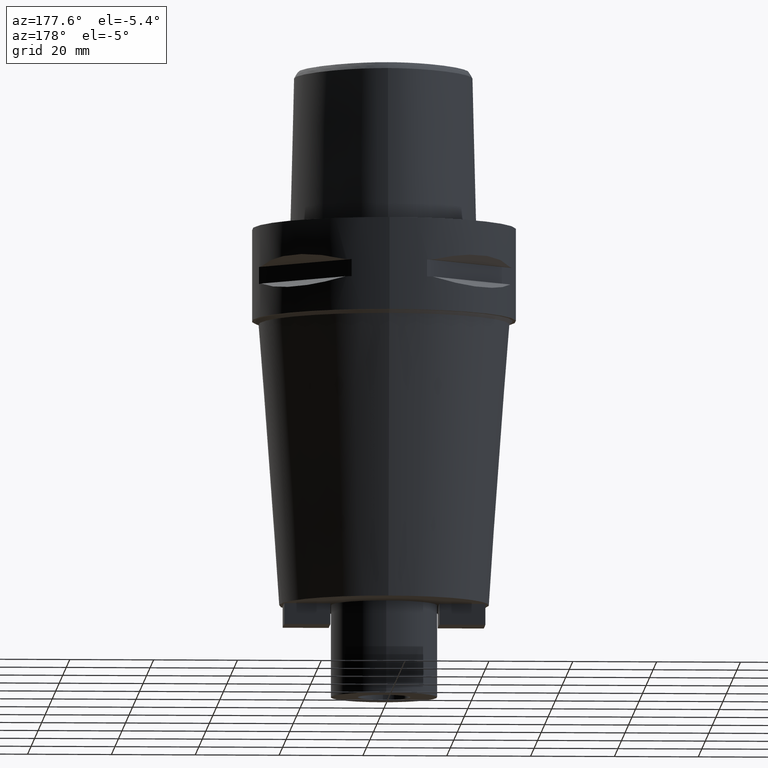
[diagram: clean part render]
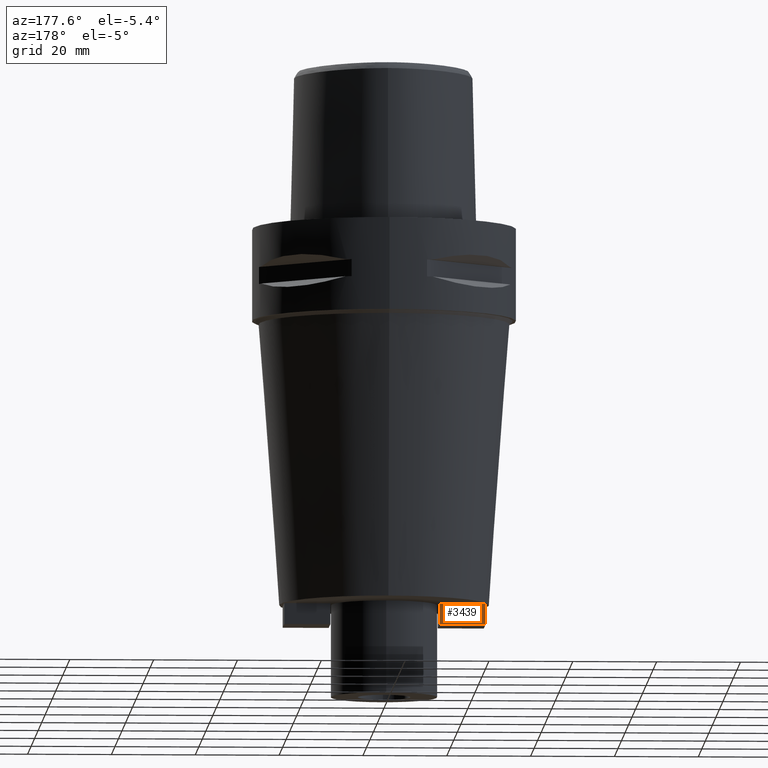
[diagram: same view with one face highlighted and labeled with its STEP entity id]
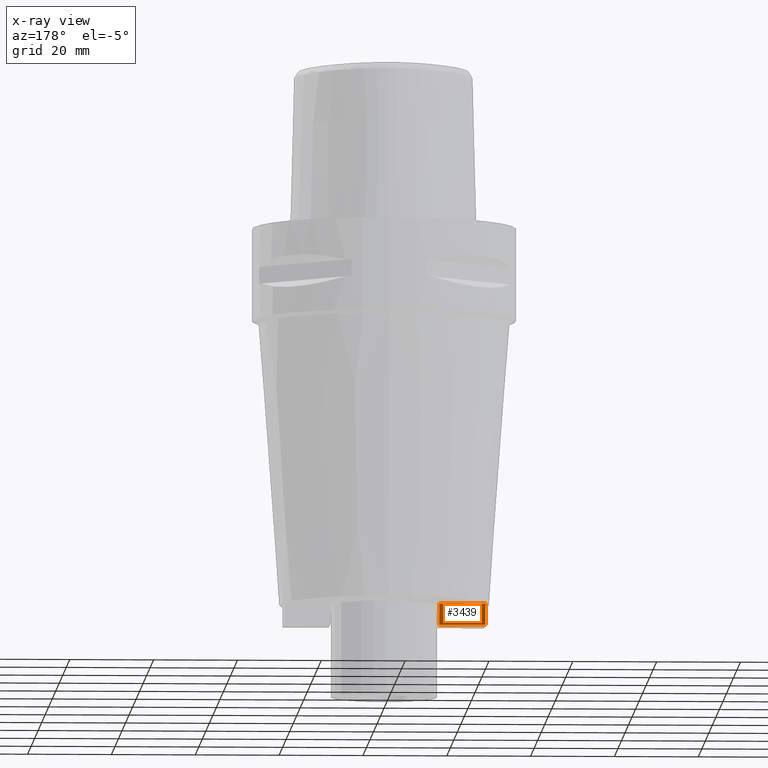
[diagram: x-ray of the same camera — body ghosted, the highlighted face saturated]
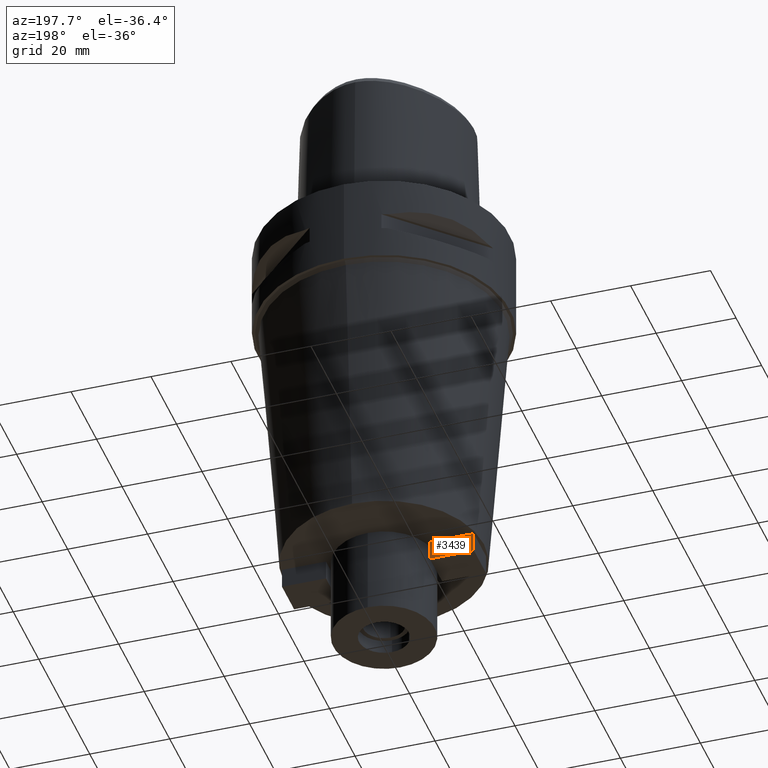
[diagram: same view with one face highlighted and labeled with its STEP entity id]
A machine part, auxiliary view. The second image highlights one B-rep face of the part: STEP entity #3439.
The next image is the same camera in x-ray: the body ghosted, the highlighted face saturated — about 0% of this face is hidden behind the body in this view.
A second angle (auxiliary view) of the same face is appended — the face is thin or edge-on in the first view.
In plain terms, the highlighted planar face has unit normal (0, -1, 0).
Its self-contained STEP definition (entity closure, byte-faithful):
#1352=DIRECTION('',(-1.E0,0.E0,0.E0));
#1353=VECTOR('',#1352,1.1E1);
#1354=CARTESIAN_POINT('',(-1.3E1,4.75E0,-9.E1));
#1355=LINE('',#1354,#1353);
#1366=DIRECTION('',(0.E0,0.E0,1.E0));
#1367=VECTOR('',#1366,5.E0);
#1368=CARTESIAN_POINT('',(-2.4E1,4.75E0,-9.5E1));
#1369=LINE('',#1368,#1367);
#1401=DIRECTION('',(0.E0,0.E0,-1.E0));
#1402=VECTOR('',#1401,5.E0);
#1403=CARTESIAN_POINT('',(-1.3E1,4.75E0,-9.E1));
#1404=LINE('',#1403,#1402);
#1408=DIRECTION('',(-1.E0,0.E0,0.E0));
#1409=VECTOR('',#1408,1.1E1);
#1410=CARTESIAN_POINT('',(-1.3E1,4.75E0,-9.5E1));
#1411=LINE('',#1410,#1409);
#1772=CARTESIAN_POINT('',(-1.3E1,4.75E0,-9.E1));
#1773=CARTESIAN_POINT('',(-2.4E1,4.75E0,-9.E1));
#1774=VERTEX_POINT('',#1772);
#1775=VERTEX_POINT('',#1773);
#1857=CARTESIAN_POINT('',(-2.4E1,4.75E0,-9.5E1));
#1858=VERTEX_POINT('',#1857);
#1859=CARTESIAN_POINT('',(-1.3E1,4.75E0,-9.5E1));
#1860=VERTEX_POINT('',#1859);
#3425=CARTESIAN_POINT('',(0.E0,4.75E0,0.E0));
#3426=DIRECTION('',(0.E0,-1.E0,0.E0));
#3427=DIRECTION('',(0.E0,0.E0,-1.E0));
#3428=AXIS2_PLACEMENT_3D('',#3425,#3426,#3427);
#3429=PLANE('',#3428);
#3430=ORIENTED_EDGE('',*,*,#2756,.T.);
#3432=ORIENTED_EDGE('',*,*,#3431,.F.);
#3434=ORIENTED_EDGE('',*,*,#3433,.F.);
#3436=ORIENTED_EDGE('',*,*,#3435,.F.);
#3437=EDGE_LOOP('',(#3430,#3432,#3434,#3436));
#3438=FACE_OUTER_BOUND('',#3437,.F.);
#2756=EDGE_CURVE('',#1774,#1775,#1355,.T.);
#3431=EDGE_CURVE('',#1858,#1775,#1369,.T.);
#3433=EDGE_CURVE('',#1860,#1858,#1411,.T.);
#3435=EDGE_CURVE('',#1774,#1860,#1404,.T.);
#3439=ADVANCED_FACE('',(#3438),#3429,.F.);